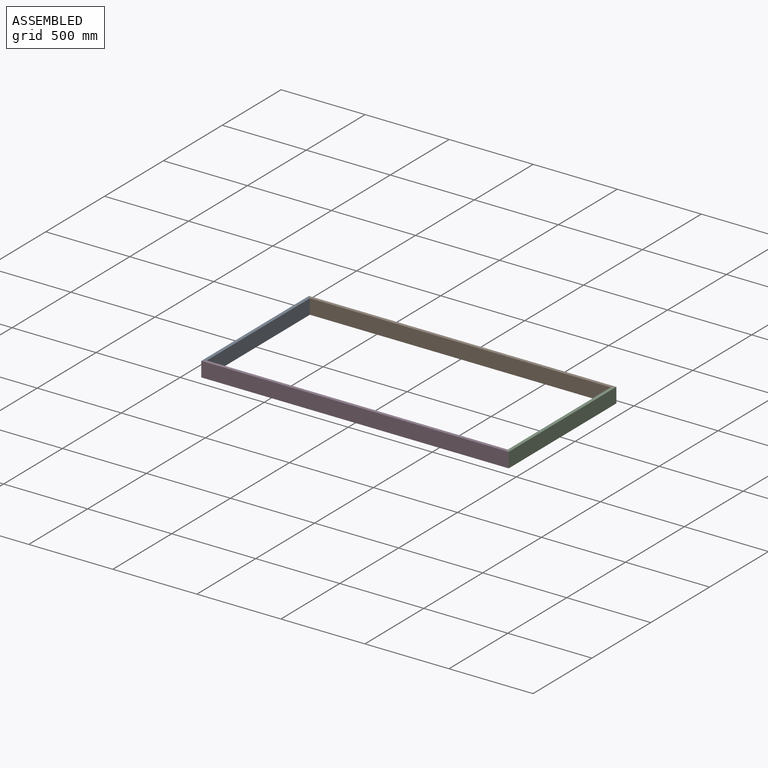
[diagram: assembled view]
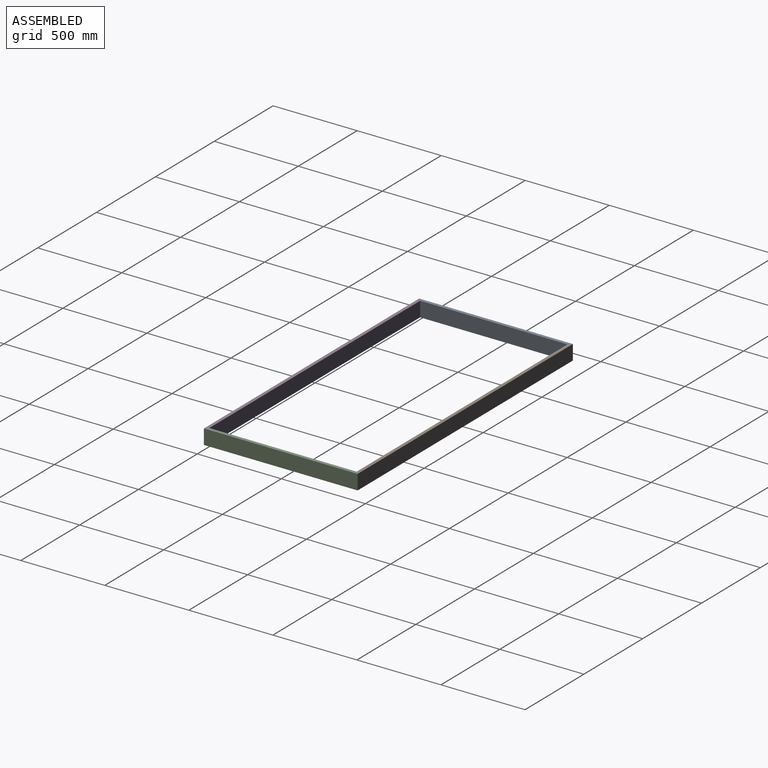
[diagram: assembled view, second angle]
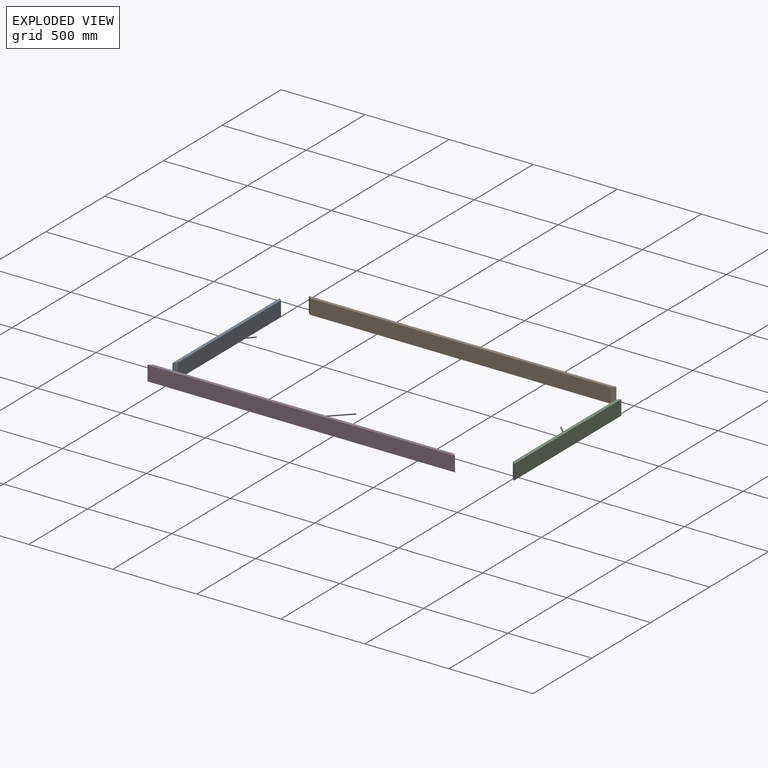
[diagram: exploded view]
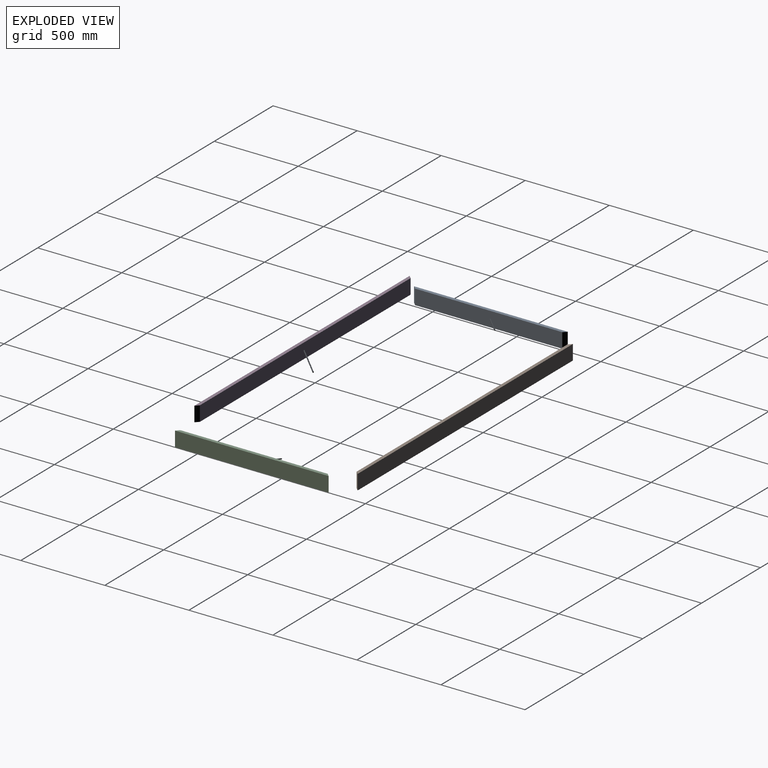
[diagram: exploded view, second angle]
ASSEMBLY  parts=4 mates=3
PART A: 6 faces, bbox 88.9x19.1x914.4 mm
  f0: plane 914.4x19.05mm, normal (-1,0,0), area 17056.4mm2, adj f1,f3,f4,f5
  f1: plane 876.3x88.9mm, normal (0,-1,0), area 77903.1mm2, adj f0,f2,f4,f5
  f2: plane 914.4x19.05mm, normal (1,0,0), area 17056.4mm2, adj f1,f3,f4,f5
  f3: plane 914.4x88.9mm, normal (0,1,0), area 81290.2mm2, adj f0,f2,f4,f5
  f4: plane 88.9x19.05mm, normal (0,-0.71,-0.71), area 2395mm2, adj f0,f1,f2,f3
  f5: plane 88.9x19.05mm, normal (0,-0.71,0.71), area 2395mm2, adj f0,f1,f2,f3
PART B: 6 faces, bbox 88.9x19.1x1828.8 mm
  f0: plane 1828.8x19.05mm, normal (1,0,0), area 34475.7mm2, adj f1,f3,f4,f5
  f1: plane 1790.7x88.9mm, normal (0,1,0), area 159193.2mm2, adj f0,f2,f4,f5
  f2: plane 1828.8x19.05mm, normal (-1,0,0), area 34475.7mm2, adj f1,f3,f4,f5
  f3: plane 1828.8x88.9mm, normal (0,-1,0), area 162580.3mm2, adj f0,f2,f4,f5
  f4: plane 88.9x19.05mm, normal (0,0.71,-0.71), area 2395mm2, adj f0,f1,f2,f3
  f5: plane 88.9x19.05mm, normal (0,0.71,0.71), area 2395mm2, adj f0,f1,f2,f3
PART C: same geometry as A
PART D: same geometry as B
PLACE A rot(axis=(-0.58,0.58,0.58),120deg) t=(-868.02,-1494.65,665.26)mm
PLACE B rot(axis=(0.71,0,-0.71),180deg) t=(951.26,-589.77,874.4)mm
PLACE C rot(axis=(-0.58,-0.58,-0.58),120deg) t=(941.73,-1494.65,1083.53)mm
PLACE D rot(axis=(0,1,0),90deg) t=(-877.54,-1485.12,874.4)mm
MATE fastened A.f5 <-> B.f5  axis (0.71,0.71,0) through (-868.02,-589.77,874.4)mm
MATE fastened D.f5 <-> C.f4  axis (0.71,0.71,0) through (941.73,-1485.12,874.4)mm
MATE fastened C.f5 <-> B.f4  axis (-0.71,0.71,0) through (941.73,-589.77,874.4)mm
